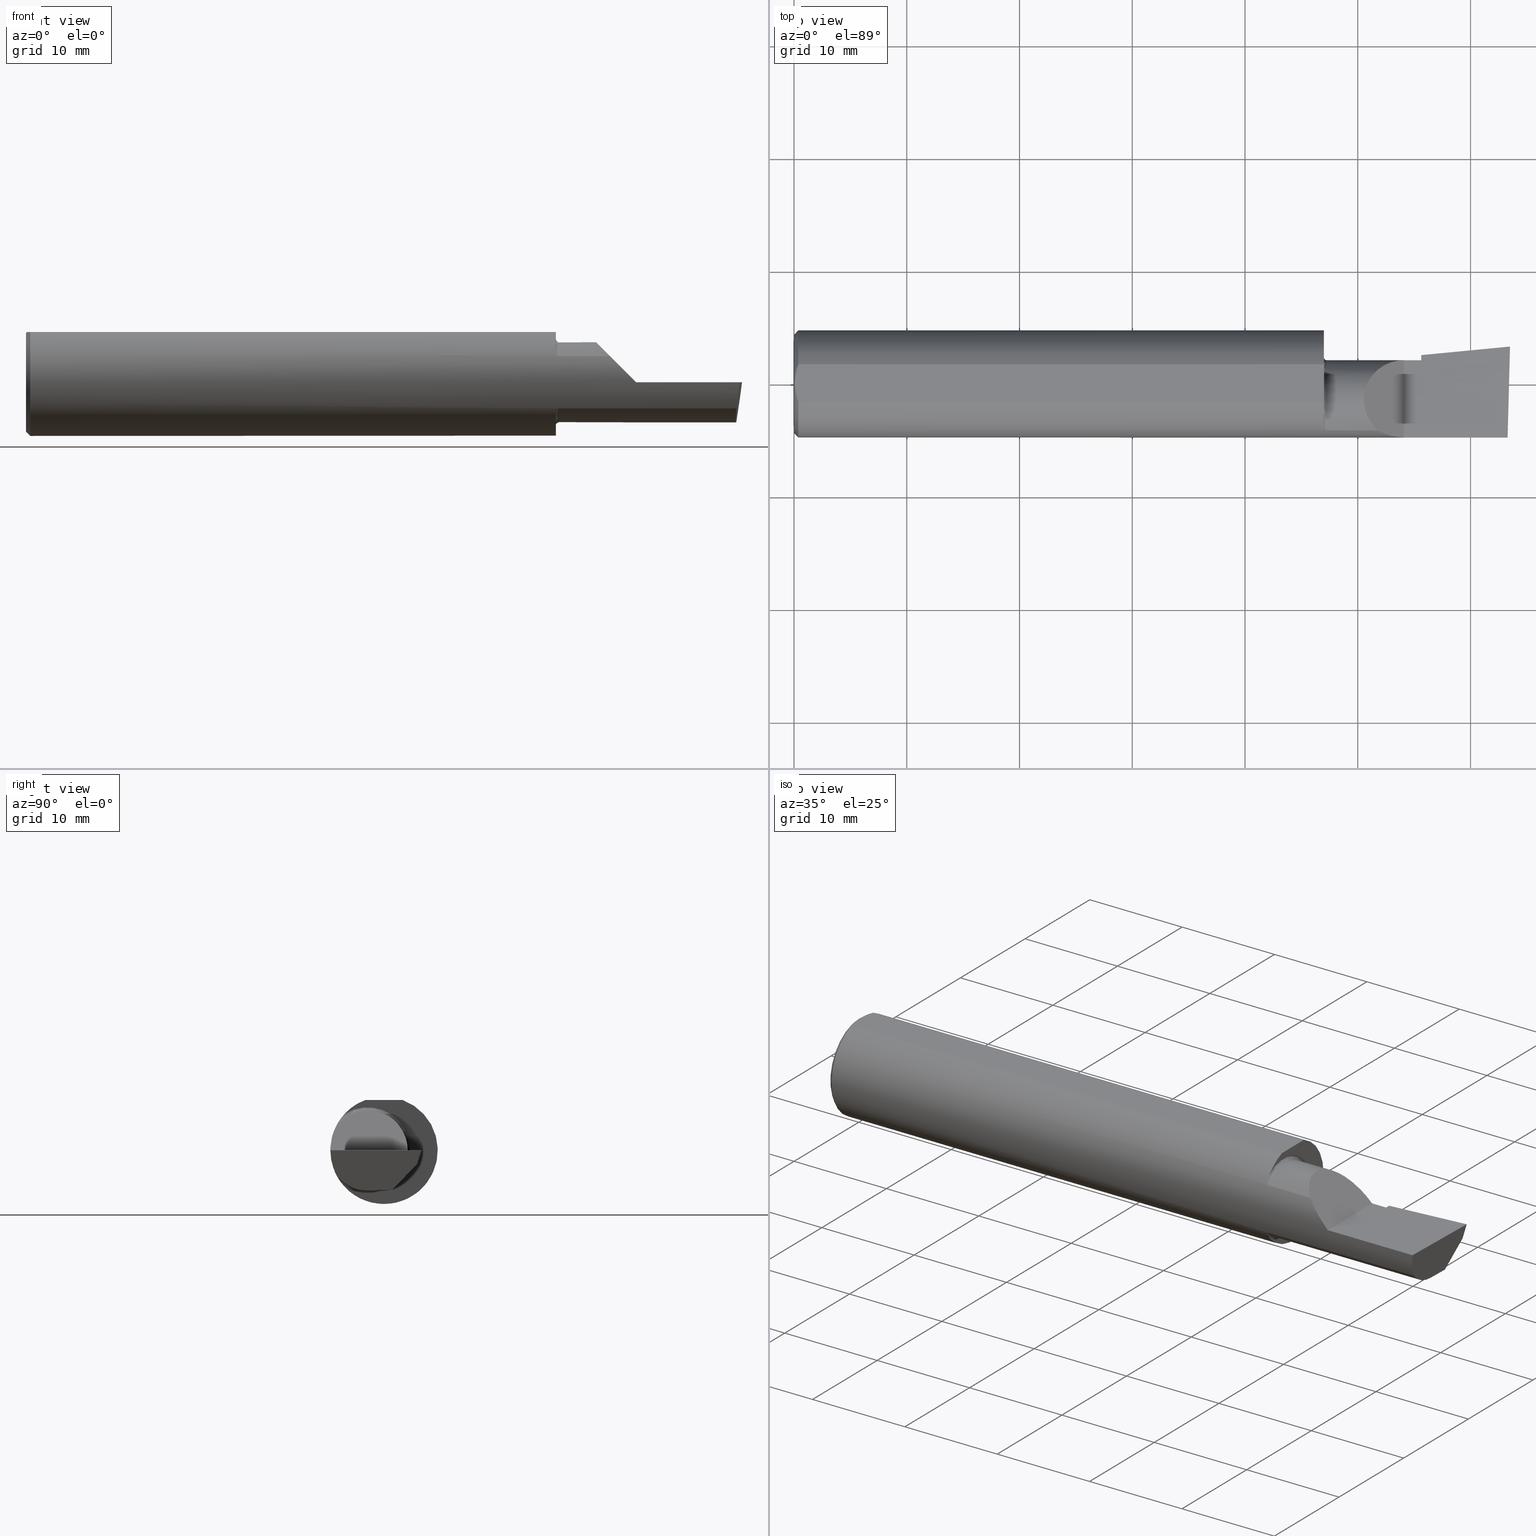
[diagram: canonical four-view strip — front | top / right | iso, engineering-drawing reading convention]
A machine part, canonical four-view strip (front | top / right | iso — engineering-drawing reading convention). The complete STEP part file that produces these views, byte-faithful:
ISO-10303-21;
HEADER;
FILE_DESCRIPTION (( 'STEP AP203' ),
    '1' );
FILE_NAME ('217510-B320600.STEP',
    '2024-04-26T19:30:04',
    ( '' ),
    ( '' ),
    'SwSTEP 2.0',
    'SolidWorks 2022',
    '' );
FILE_SCHEMA (( 'CONFIG_CONTROL_DESIGN' ));
ENDSEC;

DATA;
#1 = CARTESIAN_POINT ( 'NONE',  ( 2.189999999999999947, -0.05739999999999999963, 0.000000000000000000 ) ) ;
#2 = PLANE ( 'NONE',  #108 ) ;
#3 = AXIS2_PLACEMENT_3D ( 'NONE', #416, #96, #233 ) ;
#4 = LOCAL_TIME ( 12, 30, 4.000000000000000000, #10 ) ;
#5 = DIRECTION ( 'NONE',  ( 0.000000000000000000, -1.438723400918613551E-16, -1.000000000000000000 ) ) ;
#6 = SHAPE_DEFINITION_REPRESENTATION ( #294, #413 ) ;
#7 = DIRECTION ( 'NONE',  ( 0.9953961983671787417, 0.09584575252022456415, -1.028972571603813720E-16 ) ) ;
#8 = PRODUCT_DEFINITION ( 'UNKNOWN', '', #546, #553 ) ;
#9 = CARTESIAN_POINT ( 'NONE',  ( 2.481080296960508580, -0.1635956445993030084, -0.09130436773856176469 ) ) ;
#10 = COORDINATED_UNIVERSAL_TIME_OFFSET ( 8, 0, .BEHIND. ) ;
#11 = DIRECTION ( 'NONE',  ( 0.000000000000000000, 1.000000000000000000, 0.000000000000000000 ) ) ;
#12 = DIRECTION ( 'NONE',  ( -0.9953961983671800740, -0.09584575252021031166, 0.000000000000000000 ) ) ;
#13 = AXIS2_PLACEMENT_3D ( 'NONE', #112, #201, #404 ) ;
#14 = CARTESIAN_POINT ( 'NONE',  ( 2.475850273311264615, -0.1244607267090816621, -0.1422282308645907711 ) ) ;
#15 = DIRECTION ( 'NONE',  ( 1.000000000000000000, 6.829619984160658046E-18, 0.000000000000000000 ) ) ;
#16 = EDGE_LOOP ( 'NONE', ( #275, #225 ) ) ;
#17 = CARTESIAN_POINT ( 'NONE',  ( -9.564882787816664242E-19, 0.08264999999999998737, 3.267291166268304703E-16 ) ) ;
#18 = ADVANCED_FACE ( 'NONE', ( #517 ), #90, .T. ) ;
#19 = VERTEX_POINT ( 'NONE', #520 ) ;
#20 = CARTESIAN_POINT ( 'NONE',  ( 2.189999999999999947, -0.05739999999999999963, -0.1400500000000000633 ) ) ;
#21 = CARTESIAN_POINT ( 'NONE',  ( 1.858200855161538323, -0.1632467142437135921, -0.09192985110639206869 ) ) ;
#22 = AXIS2_PLACEMENT_3D ( 'NONE', #375, #146, #198 ) ;
#23 = LOCAL_TIME ( 12, 30, 4.000000000000000000, #533 ) ;
#24 = ORIENTED_EDGE ( 'NONE', *, *, #471, .T. ) ;
#25 = COORDINATED_UNIVERSAL_TIME_OFFSET ( 8, 0, .BEHIND. ) ;
#26 = CARTESIAN_POINT ( 'NONE',  ( 2.511419111345317923, 0.1163922996227946260, -0.04999999999999999584 ) ) ;
#27 =( BOUNDED_CURVE ( )  B_SPLINE_CURVE ( 3, ( #134, #40, #514, #180 ),
 .UNSPECIFIED., .F., .F. ) 
 B_SPLINE_CURVE_WITH_KNOTS ( ( 4, 4 ),
 ( 0.8516985021657650368, 1.360746882515200484 ),
 .UNSPECIFIED. ) 
 CURVE ( )  GEOMETRIC_REPRESENTATION_ITEM ( )  RATIONAL_B_SPLINE_CURVE ( ( 1.000000000000000000, 0.9785221379938656705, 0.9785221379938656705, 1.000000000000000000 ) ) 
 REPRESENTATION_ITEM ( '' )  );
#28 = VERTEX_POINT ( 'NONE', #94 ) ;
#29 = COORDINATED_UNIVERSAL_TIME_OFFSET ( 8, 0, .BEHIND. ) ;
#30 = LINE ( 'NONE', #276, #71 ) ;
#31 = ORIENTED_EDGE ( 'NONE', *, *, #509, .F. ) ;
#32 = CALENDAR_DATE ( 2024, 26, 4 ) ;
#33 = DIRECTION ( 'NONE',  ( 1.000000000000000000, 6.829619984160658046E-18, 0.000000000000000000 ) ) ;
#34 = B_SPLINE_CURVE_WITH_KNOTS ( 'NONE', 3,
 ( #408, #116, #21, #260, #257, #458, #601, #250, #405, #550, #597, #70 ),
 .UNSPECIFIED., .F., .F.,
 ( 4, 2, 2, 2, 2, 4 ),
 ( 1.968964099585697359E-07, 7.414172666648550939E-05, 0.0001480865569230124454, 0.0002959762174360593785, 0.0005917555384621507510, 0.001183314180514336966 ),
 .UNSPECIFIED. ) ;
#35 = ADVANCED_FACE ( 'NONE', ( #432 ), #291, .F. ) ;
#36 = AXIS2_PLACEMENT_3D ( 'NONE', #248, #152, #106 ) ;
#37 = ORIENTED_EDGE ( 'NONE', *, *, #373, .T. ) ;
#38 = AXIS2_PLACEMENT_3D ( 'NONE', #57, #153, #299 ) ;
#39 = CARTESIAN_POINT ( 'NONE',  ( 0.01499999999999997863, -0.06597272163553657975, 0.1753499999999999781 ) ) ;
#40 = CARTESIAN_POINT ( 'NONE',  ( 2.484117089522337452, -0.1792580844883771007, -0.06324101202936138755 ) ) ;
#41 = CARTESIAN_POINT ( 'NONE',  ( 2.189999999999999947, 0.1008003950587628567, 0.000000000000000000 ) ) ;
#42 = LENGTH_MEASURE_WITH_UNIT ( LENGTH_MEASURE( 0.02539999999999999897 ), #314 );
#43 = DIRECTION ( 'NONE',  ( 1.000000000000000000, 6.829619984160658046E-18, 0.000000000000000000 ) ) ;
#44 = EDGE_LOOP ( 'NONE', ( #262, #591 ) ) ;
#45 = EDGE_CURVE ( 'NONE', #570, #214, #340, .T. ) ;
#46 = ADVANCED_FACE ( 'NONE', ( #389 ), #114, .F. ) ;
#47 = LINE ( 'NONE', #473, #535 ) ;
#48 = VERTEX_POINT ( 'NONE', #481 ) ;
#49 = VECTOR ( 'NONE', #529, 39.37007874015748143 ) ;
#50 =( GEOMETRIC_REPRESENTATION_CONTEXT ( 3 ) GLOBAL_UNCERTAINTY_ASSIGNED_CONTEXT ( ( #615 ) ) GLOBAL_UNIT_ASSIGNED_CONTEXT ( ( #422, #317, #227 ) ) REPRESENTATION_CONTEXT ( 'NONE', 'WORKASPACE' ) );
#51 = DIRECTION ( 'NONE',  ( 0.000000000000000000, -1.000000000000000000, 0.000000000000000000 ) ) ;
#52 = VERTEX_POINT ( 'NONE', #54 ) ;
#53 = CARTESIAN_POINT ( 'NONE',  ( 2.189999999999999947, -0.05739999999999999963, -0.1400500000000000633 ) ) ;
#54 = CARTESIAN_POINT ( 'NONE',  ( 2.189999999999999947, 0.08265000000000004288, 3.267291166268305196E-16 ) ) ;
#55 = APPROVAL_DATE_TIME ( #434, #380 ) ;
#56 = CC_DESIGN_PERSON_AND_ORGANIZATION_ASSIGNMENT ( #223, #607, ( #546 ) ) ;
#57 = CARTESIAN_POINT ( 'NONE',  ( 1.860000000000000098, -0.05739999999999999963, 0.000000000000000000 ) ) ;
#58 = EDGE_CURVE ( 'NONE', #52, #557, #383, .T. ) ;
#59 = SECURITY_CLASSIFICATION_LEVEL ( 'unclassified' ) ;
#60 = AXIS2_PLACEMENT_3D ( 'NONE', #218, #173, #538 ) ;
#61 = DIRECTION ( 'NONE',  ( -1.000000000000000000, -6.829619984160658046E-18, -0.000000000000000000 ) ) ;
#62 = AXIS2_PLACEMENT_3D ( 'NONE', #137, #43, #328 ) ;
#63 = VERTEX_POINT ( 'NONE', #578 ) ;
#64 = CARTESIAN_POINT ( 'NONE',  ( 1.860000000000000098, -0.05740000000000000657, 0.000000000000000000 ) ) ;
#65 = DIRECTION ( 'NONE',  ( 1.000000000000000000, 0.000000000000000000, 0.000000000000000000 ) ) ;
#66 = EDGE_CURVE ( 'NONE', #476, #63, #503, .T. ) ;
#67 = DIRECTION ( 'NONE',  ( 6.829619984160658816E-18, -1.000000000000000000, 0.000000000000000000 ) ) ;
#68 = CARTESIAN_POINT ( 'NONE',  ( 0.000000000000000000, 0.06597272163553663527, 0.1753499999999999781 ) ) ;
#69 = FACE_OUTER_BOUND ( 'NONE', #235, .T. ) ;
#70 = CARTESIAN_POINT ( 'NONE',  ( 1.850000000000000311, -0.1383256097560975062, -0.1263568288047932087 ) ) ;
#71 = VECTOR ( 'NONE', #360, 39.37007874015748854 ) ;
#72 = EDGE_LOOP ( 'NONE', ( #428, #358, #117, #368, #491 ) ) ;
#73 = CARTESIAN_POINT ( 'NONE',  ( 0.01499999999999999424, 0.000000000000000000, -0.1873499999999999888 ) ) ;
#74 = DIRECTION ( 'NONE',  ( 4.755568962650852797E-18, -0.6963153109074924352, -0.7177360153954948085 ) ) ;
#75 = EDGE_CURVE ( 'NONE', #79, #594, #202, .T. ) ;
#76 = ORIENTED_EDGE ( 'NONE', *, *, #150, .T. ) ;
#77 = DIRECTION ( 'NONE',  ( 1.000000000000000000, 6.829619984160658046E-18, 0.000000000000000000 ) ) ;
#78 = CARTESIAN_POINT ( 'NONE',  ( 1.975085956200449022, 0.08265000000000000124, 0.1549140437995494002 ) ) ;
#79 = VERTEX_POINT ( 'NONE', #500 ) ;
#80 = AXIS2_PLACEMENT_3D ( 'NONE', #140, #371, #144 ) ;
#81 = VERTEX_POINT ( 'NONE', #167 ) ;
#82 = CARTESIAN_POINT ( 'NONE',  ( 0.004093196532652216939, -0.02240707710020816909, 0.1753499999999999504 ) ) ;
#83 = CARTESIAN_POINT ( 'NONE',  ( 0.008244775919947424855, 0.04453482769755855164, 0.1753499999999999504 ) ) ;
#84 = ORIENTED_EDGE ( 'NONE', *, *, #254, .F. ) ;
#85 = ADVANCED_FACE ( 'NONE', ( #453 ), #325, .T. ) ;
#86 = LINE ( 'NONE', #231, #101 ) ;
#87 = EDGE_LOOP ( 'NONE', ( #515, #507, #474, #472 ) ) ;
#88 = CARTESIAN_POINT ( 'NONE',  ( 1.850000000000000311, -0.06597272163553659363, 0.1753499999999999781 ) ) ;
#89 = AXIS2_PLACEMENT_3D ( 'NONE', #41, #229, #370 ) ;
#90 = PLANE ( 'NONE',  #89 ) ;
#91 = VECTOR ( 'NONE', #247, 39.37007874015748143 ) ;
#92 = CC_DESIGN_APPROVAL ( #380, ( #417 ) ) ;
#93 = CARTESIAN_POINT ( 'NONE',  ( 0.004115035183746292881, 0.02255629470626744487, 0.1753499999999999781 ) ) ;
#94 = CARTESIAN_POINT ( 'NONE',  ( 0.000000000000000000, 0.000000000000000000, -0.1723499999999996424 ) ) ;
#95 = EDGE_CURVE ( 'NONE', #135, #305, #34, .T. ) ;
#96 = DIRECTION ( 'NONE',  ( -1.000000000000000000, -0.000000000000000000, -0.000000000000000000 ) ) ;
#97 = ORIENTED_EDGE ( 'NONE', *, *, #448, .T. ) ;
#98 = DIRECTION ( 'NONE',  ( 0.1240019227988267692, 0.3022330132596590113, 0.9451342385281470415 ) ) ;
#99 = CC_DESIGN_PERSON_AND_ORGANIZATION_ASSIGNMENT ( #407, #612, ( #8 ) ) ;
#100 = ORIENTED_EDGE ( 'NONE', *, *, #150, .F. ) ;
#101 = VECTOR ( 'NONE', #423, 39.37007874015748143 ) ;
#102 = CARTESIAN_POINT ( 'NONE',  ( 0.000000000000000000, 0.000000000000000000, 0.000000000000000000 ) ) ;
#103 = DATE_AND_TIME ( #528, #267 ) ;
#104 = CYLINDRICAL_SURFACE ( 'NONE', #606, 0.1400500000000000078 ) ;
#105 = LINE ( 'NONE', #579, #296 ) ;
#106 = DIRECTION ( 'NONE',  ( 6.829619984160658046E-18, -1.000000000000000000, 0.000000000000000000 ) ) ;
#107 = ORIENTED_EDGE ( 'NONE', *, *, #532, .T. ) ;
#108 = AXIS2_PLACEMENT_3D ( 'NONE', #435, #574, #332 ) ;
#109 = LINE ( 'NONE', #531, #243 ) ;
#110 = EDGE_CURVE ( 'NONE', #406, #81, #346, .T. ) ;
#111 = ORIENTED_EDGE ( 'NONE', *, *, #45, .F. ) ;
#112 = CARTESIAN_POINT ( 'NONE',  ( 2.511419111345317923, 0.1163922996227946260, -0.04999999999999999584 ) ) ;
#113 = CARTESIAN_POINT ( 'NONE',  ( 1.860000000000000098, -0.1635956445993029251, -0.09130436773856194510 ) ) ;
#114 = PLANE ( 'NONE',  #36 ) ;
#115 = DIRECTION ( 'NONE',  ( 1.000000000000000000, 6.829619984160658046E-18, 0.000000000000000000 ) ) ;
#116 = CARTESIAN_POINT ( 'NONE',  ( 1.859014641741961738, -0.1635956445993029529, -0.09130436773856194510 ) ) ;
#117 = ORIENTED_EDGE ( 'NONE', *, *, #387, .T. ) ;
#118 = CARTESIAN_POINT ( 'NONE',  ( 2.189999999999999947, 0.06670933817657886955, -0.06931012851386068874 ) ) ;
#119 = AXIS2_PLACEMENT_3D ( 'NONE', #1, #443, #195 ) ;
#120 = CARTESIAN_POINT ( 'NONE',  ( 2.189999999999999947, 0.06670933817657886955, -0.06931012851386068874 ) ) ;
#121 = VECTOR ( 'NONE', #571, 39.37007874015748143 ) ;
#122 = ORIENTED_EDGE ( 'NONE', *, *, #573, .T. ) ;
#123 = CARTESIAN_POINT ( 'NONE',  ( 1.853030094855348642, -0.1569359418858942423, 0.1023945457153807304 ) ) ;
#124 = ORIENTED_EDGE ( 'NONE', *, *, #461, .T. ) ;
#125 = LINE ( 'NONE', #162, #288 ) ;
#126 = ORIENTED_EDGE ( 'NONE', *, *, #552, .T. ) ;
#127 = APPROVAL_DATE_TIME ( #172, #282 ) ;
#128 = DIRECTION ( 'NONE',  ( -1.000000000000000000, -0.000000000000000000, -0.000000000000000000 ) ) ;
#129 = VECTOR ( 'NONE', #270, 39.37007874015748143 ) ;
#130 = EDGE_CURVE ( 'NONE', #239, #599, #304, .T. ) ;
#131 = EDGE_LOOP ( 'NONE', ( #280, #185, #465, #522 ) ) ;
#132 = EDGE_CURVE ( 'NONE', #570, #498, #478, .T. ) ;
#133 = CARTESIAN_POINT ( 'NONE',  ( 0.008227791779583789808, -0.04447712204611815878, 0.1753499999999999781 ) ) ;
#134 = CARTESIAN_POINT ( 'NONE',  ( 2.481080296960508580, -0.1635956445993030084, -0.09130436773856176469 ) ) ;
#135 = VERTEX_POINT ( 'NONE', #113 ) ;
#136 = APPLICATION_PROTOCOL_DEFINITION ( 'international standard', 'config_control_design', 1994, #323 ) ;
#137 = CARTESIAN_POINT ( 'NONE',  ( 1.850000000000000311, 0.09264999999999999625, 0.000000000000000000 ) ) ;
#138 = ORIENTED_EDGE ( 'NONE', *, *, #263, .T. ) ;
#139 = CARTESIAN_POINT ( 'NONE',  ( 0.003000000000000218638, 2.334609556160449697E-17, 0.1753499999999999781 ) ) ;
#140 = CARTESIAN_POINT ( 'NONE',  ( 2.500000000000000000, -0.05739999999999999963, -0.1400500000000000633 ) ) ;
#141 = AXIS2_PLACEMENT_3D ( 'NONE', #355, #266, #206 ) ;
#142 = EDGE_LOOP ( 'NONE', ( #361, #377, #268, #618, #164, #210 ) ) ;
#143 = ORGANIZATION ( 'UNSPECIFIED', 'UNSPECIFIED', '' ) ;
#144 = DIRECTION ( 'NONE',  ( 0.000000000000000000, -1.000000000000000000, -8.537024980200821325E-17 ) ) ;
#145 = EDGE_LOOP ( 'NONE', ( #219, #418, #560, #242, #412, #485 ) ) ;
#146 = DIRECTION ( 'NONE',  ( -1.000000000000000000, -6.829619984160658046E-18, 0.000000000000000000 ) ) ;
#147 = ORIENTED_EDGE ( 'NONE', *, *, #461, .F. ) ;
#148 = DIRECTION ( 'NONE',  ( 0.000000000000000000, -1.000000000000000000, 0.000000000000000000 ) ) ;
#149 = CIRCLE ( 'NONE', #436, 0.1723499999999996424 ) ;
#150 = EDGE_CURVE ( 'NONE', #512, #599, #187, .T. ) ;
#151 = CARTESIAN_POINT ( 'NONE',  ( 2.189999999999999947, 0.09745742888373046253, -0.01088401009027229610 ) ) ;
#152 = DIRECTION ( 'NONE',  ( -1.000000000000000000, -6.829619984160658046E-18, 0.000000000000000000 ) ) ;
#153 = DIRECTION ( 'NONE',  ( -1.000000000000000000, -6.829619984160658046E-18, -0.000000000000000000 ) ) ;
#154 = CARTESIAN_POINT ( 'NONE',  ( 2.493439983562941720, 0.1146611065212079089, -0.04999999999999999584 ) ) ;
#155 = EDGE_CURVE ( 'NONE', #512, #557, #583, .T. ) ;
#156 = EDGE_CURVE ( 'NONE', #512, #524, #349, .T. ) ;
#157 = VECTOR ( 'NONE', #7, 39.37007874015748143 ) ;
#158 = CARTESIAN_POINT ( 'NONE',  ( 1.859029114488072842, -0.1635956446012896415, 0.09130436773500356928 ) ) ;
#159 = PLANE ( 'NONE',  #13 ) ;
#160 = DIRECTION ( 'NONE',  ( -1.000000000000000000, -6.829619984160658046E-18, -0.000000000000000000 ) ) ;
#161 =( BOUNDED_CURVE ( )  B_SPLINE_CURVE ( 3, ( #345, #595, #542, #264 ),
 .UNSPECIFIED., .F., .F. ) 
 B_SPLINE_CURVE_WITH_KNOTS ( ( 4, 4 ),
 ( 5.632580117768155148, 6.493234751459282528 ),
 .UNSPECIFIED. ) 
 CURVE ( )  GEOMETRIC_REPRESENTATION_ITEM ( )  RATIONAL_B_SPLINE_CURVE ( ( 1.000000000000000000, 0.9392195014330944058, 0.9392195014330944058, 1.000000000000000000 ) ) 
 REPRESENTATION_ITEM ( '' )  );
#162 = CARTESIAN_POINT ( 'NONE',  ( 2.024999999999999911, -0.1635956445993030084, -0.09130436773856176469 ) ) ;
#163 = CARTESIAN_POINT ( 'NONE',  ( 2.500000000000000000, -0.05739999999999999963, -0.1400500000000000633 ) ) ;
#164 = ORIENTED_EDGE ( 'NONE', *, *, #552, .F. ) ;
#165 = DIRECTION ( 'NONE',  ( -0.9922060308645608284, 0.02598182930461468559, 0.1218693434050591162 ) ) ;
#166 = ADVANCED_FACE ( 'NONE', ( #281 ), #363, .F. ) ;
#167 = CARTESIAN_POINT ( 'NONE',  ( 2.189999999999999947, 0.08544315931885974880, -0.04999999999999999584 ) ) ;
#168 = CONICAL_SURFACE ( 'NONE', #619, 0.1873499999999999888, 0.7853981633974602694 ) ;
#169 = ORIENTED_EDGE ( 'NONE', *, *, #344, .F. ) ;
#170 = FACE_OUTER_BOUND ( 'NONE', #145, .T. ) ;
#171 = ORIENTED_EDGE ( 'NONE', *, *, #525, .F. ) ;
#172 = DATE_AND_TIME ( #32, #568 ) ;
#173 = DIRECTION ( 'NONE',  ( -1.000000000000000000, -0.000000000000000000, -0.000000000000000000 ) ) ;
#174 = ORIENTED_EDGE ( 'NONE', *, *, #433, .T. ) ;
#175 = CARTESIAN_POINT ( 'NONE',  ( 0.000000000000000000, 0.000000000000000000, 0.000000000000000000 ) ) ;
#176 = DIRECTION ( 'NONE',  ( 0.000000000000000000, 0.000000000000000000, -1.000000000000000000 ) ) ;
#177 = CIRCLE ( 'NONE', #469, 0.1723499999999996424 ) ;
#178 = VERTEX_POINT ( 'NONE', #88 ) ;
#179 = PERSON_AND_ORGANIZATION ( #382, #143 ) ;
#180 = CARTESIAN_POINT ( 'NONE',  ( 2.491672876940991710, -0.1873499999999999888, 6.915950918908297591E-17 ) ) ;
#181 = ORIENTED_EDGE ( 'NONE', *, *, #209, .F. ) ;
#182 = EDGE_CURVE ( 'NONE', #178, #283, #47, .T. ) ;
#183 = PERSON_AND_ORGANIZATION_ROLE ( 'design_owner' ) ;
#184 = CARTESIAN_POINT ( 'NONE',  ( 0.01499999999999999424, 0.000000000000000000, 0.000000000000000000 ) ) ;
#185 = ORIENTED_EDGE ( 'NONE', *, *, #441, .T. ) ;
#186 = CARTESIAN_POINT ( 'NONE',  ( 3.377502344341257155E-32, -0.1873499999999999610, 3.267291166268304703E-16 ) ) ;
#187 = CIRCLE ( 'NONE', #577, 0.1400500000000000356 ) ;
#188 = ORIENTED_EDGE ( 'NONE', *, *, #66, .F. ) ;
#189 = CARTESIAN_POINT ( 'NONE',  ( 0.5470260790800310913, -0.05740000000000000657, 2.701812985571357332E-16 ) ) ;
#190 = ORIENTED_EDGE ( 'NONE', *, *, #45, .T. ) ;
#191 = LINE ( 'NONE', #576, #49 ) ;
#192 = EDGE_CURVE ( 'NONE', #498, #283, #487, .T. ) ;
#193 = APPROVAL_ROLE ( '' ) ;
#194 = LINE ( 'NONE', #189, #157 ) ;
#195 = DIRECTION ( 'NONE',  ( 0.000000000000000000, -1.000000000000000000, 0.000000000000000000 ) ) ;
#196 = CLOSED_SHELL ( 'NONE', ( #303, #421, #18, #166, #261, #35, #551, #610, #331, #85, #329, #217, #490, #462, #588, #46, #543 ) ) ;
#197 = CIRCLE ( 'NONE', #394, 0.1873499999999999888 ) ;
#198 = DIRECTION ( 'NONE',  ( 6.829619984160658046E-18, -1.000000000000000000, 0.000000000000000000 ) ) ;
#199 = FACE_OUTER_BOUND ( 'NONE', #44, .T. ) ;
#200 = DIRECTION ( 'NONE',  ( 0.000000000000000000, 1.000000000000000000, -1.438723400918613551E-16 ) ) ;
#201 = DIRECTION ( 'NONE',  ( -0.06894566448119621160, 0.7160281025913034503, -0.6946583704589934793 ) ) ;
#202 = LINE ( 'NONE', #212, #265 ) ;
#203 = APPROVAL ( #230, 'UNSPECIFIED' ) ;
#204 = VECTOR ( 'NONE', #244, 39.37007874015748143 ) ;
#205 = PLANE ( 'NONE',  #544 ) ;
#206 = DIRECTION ( 'NONE',  ( 0.000000000000000000, 0.000000000000000000, -1.000000000000000000 ) ) ;
#207 = DIRECTION ( 'NONE',  ( -1.000000000000000000, -0.000000000000000000, -0.000000000000000000 ) ) ;
#208 = DIRECTION ( 'NONE',  ( -1.000000000000000000, 5.691349986800549142E-18, -0.000000000000000000 ) ) ;
#209 = EDGE_CURVE ( 'NONE', #438, #570, #464, .T. ) ;
#210 = ORIENTED_EDGE ( 'NONE', *, *, #110, .F. ) ;
#211 = CARTESIAN_POINT ( 'NONE',  ( 1.850000000000000311, 0.000000000000000000, 0.000000000000000000 ) ) ;
#212 = CARTESIAN_POINT ( 'NONE',  ( 2.490039159128059953, -0.2497391662021650194, 6.932588350567417155E-17 ) ) ;
#213 = B_SPLINE_CURVE_WITH_KNOTS ( 'NONE', 3,
 ( #39, #359, #133, #82, #319, #139 ),
 .UNSPECIFIED., .F., .F.,
 ( 4, 2, 4 ),
 ( 0.001779942938356815062, 0.002629978419973711019, 0.003480013901590607410 ),
 .UNSPECIFIED. ) ;
#214 = VERTEX_POINT ( 'NONE', #273 ) ;
#215 = PLANE ( 'NONE',  #352 ) ;
#216 = ORIENTED_EDGE ( 'NONE', *, *, #95, .F. ) ;
#217 = ADVANCED_FACE ( 'NONE', ( #467 ), #475, .T. ) ;
#218 = CARTESIAN_POINT ( 'NONE',  ( 0.01499999999999999424, 0.000000000000000000, 0.000000000000000000 ) ) ;
#219 = ORIENTED_EDGE ( 'NONE', *, *, #286, .F. ) ;
#220 = DIRECTION ( 'NONE',  ( -0.7071067811865439090, 0.000000000000000000, -0.7071067811865512365 ) ) ;
#221 = CARTESIAN_POINT ( 'NONE',  ( 2.129999999999999893, -0.1873499999999999888, 1.065442715258197396E-16 ) ) ;
#222 = EDGE_LOOP ( 'NONE', ( #309, #401, #451, #622, #311, #31, #171, #424, #289, #554, #190, #84, #216 ) ) ;
#223 = PERSON_AND_ORGANIZATION ( #382, #143 ) ;
#224 = CYLINDRICAL_SURFACE ( 'NONE', #3, 0.1873499999999999888 ) ;
#225 = ORIENTED_EDGE ( 'NONE', *, *, #343, .T. ) ;
#226 = CC_DESIGN_DATE_AND_TIME_ASSIGNMENT ( #580, #587, ( #417 ) ) ;
#227 =( NAMED_UNIT ( * ) SI_UNIT ( $, .STERADIAN. ) SOLID_ANGLE_UNIT ( ) );
#228 = CARTESIAN_POINT ( 'NONE',  ( 2.477873865042410806, -0.05739999999999999963, -0.1400500000000000633 ) ) ;
#229 = DIRECTION ( 'NONE',  ( -1.000000000000000000, -6.829619984160658046E-18, 0.000000000000000000 ) ) ;
#230 = APPROVAL_STATUS ( 'not_yet_approved' ) ;
#231 = CARTESIAN_POINT ( 'NONE',  ( 1.850000000000000311, 0.2373500000000000332, 0.1753499999999999504 ) ) ;
#232 = ORIENTED_EDGE ( 'NONE', *, *, #238, .F. ) ;
#233 = DIRECTION ( 'NONE',  ( 0.000000000000000000, 0.000000000000000000, 1.000000000000000000 ) ) ;
#234 = AXIS2_PLACEMENT_3D ( 'NONE', #381, #534, #51 ) ;
#235 = EDGE_LOOP ( 'NONE', ( #356, #545, #97, #174, #333, #459 ) ) ;
#236 = EDGE_CURVE ( 'NONE', #602, #79, #27, .T. ) ;
#237 = CARTESIAN_POINT ( 'NONE',  ( 2.477889026591898247, -0.05682100378451882677, -0.1400500000000000633 ) ) ;
#238 = EDGE_CURVE ( 'NONE', #214, #178, #86, .T. ) ;
#239 = VERTEX_POINT ( 'NONE', #228 ) ;
#240 = DIRECTION ( 'NONE',  ( 0.000000000000000000, 0.000000000000000000, 1.000000000000000000 ) ) ;
#241 = CARTESIAN_POINT ( 'NONE',  ( 0.000000000000000000, 2.202527268266512578E-17, 0.1723499999999996424 ) ) ;
#242 = ORIENTED_EDGE ( 'NONE', *, *, #263, .F. ) ;
#243 = VECTOR ( 'NONE', #623, 39.37007874015748143 ) ;
#244 = DIRECTION ( 'NONE',  ( -0.02617694830779365364, -0.9996573249755593693, -8.535148296544462419E-17 ) ) ;
#245 = APPROVAL_STATUS ( 'not_yet_approved' ) ;
#246 = ORIENTED_EDGE ( 'NONE', *, *, #156, .T. ) ;
#247 = DIRECTION ( 'NONE',  ( 0.000000000000000000, 1.000000000000000000, 8.537024980200821325E-17 ) ) ;
#248 = CARTESIAN_POINT ( 'NONE',  ( 2.189999999999999947, 0.1008003950587628567, 0.000000000000000000 ) ) ;
#249 = CARTESIAN_POINT ( 'NONE',  ( 1.850530357231195522, -0.1482623167742068426, 0.1147852156680473495 ) ) ;
#250 = CARTESIAN_POINT ( 'NONE',  ( 1.853013987655237171, -0.1568958379530026870, -0.1024560150687156973 ) ) ;
#251 = DIMENSIONAL_EXPONENTS ( 1.000000000000000000, 0.000000000000000000, 0.000000000000000000, 0.000000000000000000, 0.000000000000000000, 0.000000000000000000, 0.000000000000000000 ) ;
#252 = LINE ( 'NONE', #256, #456 ) ;
#253 = CARTESIAN_POINT ( 'NONE',  ( 2.129999999999999893, 0.08264999999999990410, 1.065442715258197396E-16 ) ) ;
#254 = EDGE_CURVE ( 'NONE', #305, #214, #307, .T. ) ;
#255 = ORIENTED_EDGE ( 'NONE', *, *, #110, .T. ) ;
#256 = CARTESIAN_POINT ( 'NONE',  ( 2.024999999999999911, -0.1635956445993030084, 0.09130436773856176469 ) ) ;
#257 = CARTESIAN_POINT ( 'NONE',  ( 1.856503643436637763, -0.1620795007490428707, -0.09397341491037329575 ) ) ;
#258 = VERTEX_POINT ( 'NONE', #221 ) ;
#259 = CARTESIAN_POINT ( 'NONE',  ( 2.189999999999999947, 0.06026672169836850418, -0.07595093880103591377 ) ) ;
#260 = CARTESIAN_POINT ( 'NONE',  ( 1.856977885846546661, -0.1625039841807085217, -0.09323648621225567867 ) ) ;
#261 = ADVANCED_FACE ( 'NONE', ( #425 ), #224, .T. ) ;
#262 = ORIENTED_EDGE ( 'NONE', *, *, #561, .T. ) ;
#263 = EDGE_CURVE ( 'NONE', #52, #19, #411, .T. ) ;
#264 = CARTESIAN_POINT ( 'NONE',  ( 2.477873865042410806, -0.05739999999999999963, -0.1400500000000000633 ) ) ;
#265 = VECTOR ( 'NONE', #495, 39.37007874015748854 ) ;
#266 = DIRECTION ( 'NONE',  ( 1.000000000000000000, 0.000000000000000000, 0.000000000000000000 ) ) ;
#267 = LOCAL_TIME ( 12, 30, 4.000000000000000000, #460 ) ;
#268 = ORIENTED_EDGE ( 'NONE', *, *, #156, .F. ) ;
#269 = PERSON_AND_ORGANIZATION ( #382, #143 ) ;
#270 = DIRECTION ( 'NONE',  ( -6.829619984160658816E-18, 1.000000000000000000, 7.059994452165177242E-34 ) ) ;
#271 = EDGE_LOOP ( 'NONE', ( #188, #449, #572 ) ) ;
#272 = PERSON_AND_ORGANIZATION ( #382, #143 ) ;
#273 = CARTESIAN_POINT ( 'NONE',  ( 1.850000000000000311, 0.06597272163553663527, 0.1753499999999999781 ) ) ;
#274 = CC_DESIGN_PERSON_AND_ORGANIZATION_ASSIGNMENT ( #484, #440, ( #417 ) ) ;
#275 = ORIENTED_EDGE ( 'NONE', *, *, #155, .T. ) ;
#276 = CARTESIAN_POINT ( 'NONE',  ( 2.491859106488688358, 0.02714641170210413054, -0.1400500000000000633 ) ) ;
#277 = VECTOR ( 'NONE', #208, 39.37007874015748143 ) ;
#278 = EDGE_CURVE ( 'NONE', #258, #476, #327, .T. ) ;
#279 = APPROVAL_PERSON_ORGANIZATION ( #269, #203, #193 ) ;
#280 = ORIENTED_EDGE ( 'NONE', *, *, #320, .F. ) ;
#281 = FACE_OUTER_BOUND ( 'NONE', #131, .T. ) ;
#282 = APPROVAL ( #466, 'UNSPECIFIED' ) ;
#283 = VERTEX_POINT ( 'NONE', #470 ) ;
#284 = DIRECTION ( 'NONE',  ( -1.000000000000000000, -0.000000000000000000, -0.000000000000000000 ) ) ;
#285 = ORIENTED_EDGE ( 'NONE', *, *, #596, .F. ) ;
#286 = EDGE_CURVE ( 'NONE', #79, #258, #562, .T. ) ;
#287 = FACE_OUTER_BOUND ( 'NONE', #300, .T. ) ;
#288 = VECTOR ( 'NONE', #342, 39.37007874015748143 ) ;
#289 = ORIENTED_EDGE ( 'NONE', *, *, #192, .F. ) ;
#290 = DIRECTION ( 'NONE',  ( -1.000000000000000000, -0.000000000000000000, -0.000000000000000000 ) ) ;
#291 = PLANE ( 'NONE',  #306 ) ;
#292 = CALENDAR_DATE ( 2024, 26, 4 ) ;
#293 = DIRECTION ( 'NONE',  ( 4.755568962650852797E-18, -0.6963153109074924352, -0.7177360153954948085 ) ) ;
#294 = PRODUCT_DEFINITION_SHAPE ( 'NONE', 'NONE',  #8 ) ;
#295 = CARTESIAN_POINT ( 'NONE',  ( 2.500188977433779769, 0.1311105994646662165, 0.001440373173041280741 ) ) ;
#296 = VECTOR ( 'NONE', #483, 39.37007874015748143 ) ;
#297 = ORIENTED_EDGE ( 'NONE', *, *, #238, .T. ) ;
#298 = APPROVAL_PERSON_ORGANIZATION ( #396, #380, #530 ) ;
#299 = DIRECTION ( 'NONE',  ( 6.829619984160658046E-18, -1.000000000000000000, 0.000000000000000000 ) ) ;
#300 = EDGE_LOOP ( 'NONE', ( #138, #124, #126, #326 ) ) ;
#301 = PLANE ( 'NONE',  #362 ) ;
#302 = CARTESIAN_POINT ( 'NONE',  ( 1.850000000000000533, -0.1434410963562315344, 0.1207567927018307619 ) ) ;
#303 = ADVANCED_FACE ( 'NONE', ( #321 ), #168, .T. ) ;
#304 = LINE ( 'NONE', #163, #277 ) ;
#305 = VERTEX_POINT ( 'NONE', #463 ) ;
#306 = AXIS2_PLACEMENT_3D ( 'NONE', #437, #5, #200 ) ;
#307 = CIRCLE ( 'NONE', #446, 0.1873499999999999888 ) ;
#308 = CARTESIAN_POINT ( 'NONE',  ( 0.000000000000000000, 0.000000000000000000, 0.000000000000000000 ) ) ;
#309 = ORIENTED_EDGE ( 'NONE', *, *, #573, .F. ) ;
#310 = DIRECTION ( 'NONE',  ( -1.000000000000000000, 0.000000000000000000, 1.033731667140896077E-16 ) ) ;
#311 = ORIENTED_EDGE ( 'NONE', *, *, #501, .F. ) ;
#312 = CARTESIAN_POINT ( 'NONE',  ( 2.499999999999978684, 0.1306500000000238026, 8.386960087970729725E-14 ) ) ;
#313 = ORIENTED_EDGE ( 'NONE', *, *, #58, .T. ) ;
#314 =( LENGTH_UNIT ( ) NAMED_UNIT ( * ) SI_UNIT ( $, .METRE. ) );
#315 = VECTOR ( 'NONE', #74, 39.37007874015748854 ) ;
#316 = ORIENTED_EDGE ( 'NONE', *, *, #132, .T. ) ;
#317 =( NAMED_UNIT ( * ) PLANE_ANGLE_UNIT ( ) SI_UNIT ( $, .RADIAN. ) );
#318 = ORIENTED_EDGE ( 'NONE', *, *, #392, .T. ) ;
#319 = CARTESIAN_POINT ( 'NONE',  ( 0.003000000000000172667, -0.01126410975715121283, 0.1753500000000000059 ) ) ;
#320 = EDGE_CURVE ( 'NONE', #614, #524, #30, .T. ) ;
#321 = FACE_OUTER_BOUND ( 'NONE', #468, .T. ) ;
#322 = ORIENTED_EDGE ( 'NONE', *, *, #254, .T. ) ;
#323 = APPLICATION_CONTEXT ( 'configuration controlled 3d designs of mechanical parts and assemblies' ) ;
#324 = CARTESIAN_POINT ( 'NONE',  ( 0.003000000000000169632, 0.01127363201155560934, 0.1753499999999999781 ) ) ;
#325 = CONICAL_SURFACE ( 'NONE', #141, 0.1873499999999999888, 0.7853981633974602694 ) ;
#326 = ORIENTED_EDGE ( 'NONE', *, *, #58, .F. ) ;
#327 =( BOUNDED_CURVE ( )  B_SPLINE_CURVE ( 3, ( #367, #519, #617, #620 ),
 .UNSPECIFIED., .F., .F. ) 
 B_SPLINE_CURVE_WITH_KNOTS ( ( 4, 4 ),
 ( 4.712388980384689674, 5.221437360734125122 ),
 .UNSPECIFIED. ) 
 CURVE ( )  GEOMETRIC_REPRESENTATION_ITEM ( )  RATIONAL_B_SPLINE_CURVE ( ( 1.000000000000000000, 0.9785221379938656705, 0.9785221379938656705, 1.000000000000000000 ) ) 
 REPRESENTATION_ITEM ( '' )  );
#328 = DIRECTION ( 'NONE',  ( -6.829619984160658046E-18, 1.000000000000000000, 0.000000000000000000 ) ) ;
#329 = ADVANCED_FACE ( 'NONE', ( #556 ), #518, .F. ) ;
#330 = EDGE_LOOP ( 'NONE', ( #232, #111, #181, #548, #505 ) ) ;
#331 = ADVANCED_FACE ( 'NONE', ( #199 ), #429, .F. ) ;
#332 = DIRECTION ( 'NONE',  ( 0.000000000000000000, 0.2936076258024060692, 0.9559260233253795702 ) ) ;
#333 = ORIENTED_EDGE ( 'NONE', *, *, #75, .F. ) ;
#334 = CARTESIAN_POINT ( 'NONE',  ( 0.003000000000000218638, 2.334609556160449697E-17, 0.1753499999999999781 ) ) ;
#335 = VECTOR ( 'NONE', #77, 39.37007874015748143 ) ;
#336 = MECHANICAL_CONTEXT ( 'NONE', #376, 'mechanical' ) ;
#337 = FACE_OUTER_BOUND ( 'NONE', #455, .T. ) ;
#338 = LINE ( 'NONE', #295, #558 ) ;
#339 = DIRECTION ( 'NONE',  ( 1.000000000000000000, 0.000000000000000000, 0.000000000000000000 ) ) ;
#340 = LINE ( 'NONE', #68, #351 ) ;
#341 = VECTOR ( 'NONE', #293, 39.37007874015748854 ) ;
#342 = DIRECTION ( 'NONE',  ( -1.000000000000000000, -6.829619984160658046E-18, -0.000000000000000000 ) ) ;
#343 = EDGE_CURVE ( 'NONE', #557, #512, #486, .T. ) ;
#344 = EDGE_CURVE ( 'NONE', #420, #135, #426, .T. ) ;
#345 = CARTESIAN_POINT ( 'NONE',  ( 2.481080296960508580, -0.1635956445993030084, -0.09130436773856176469 ) ) ;
#346 = LINE ( 'NONE', #26, #567 ) ;
#347 = ORIENTED_EDGE ( 'NONE', *, *, #433, .F. ) ;
#348 = CARTESIAN_POINT ( 'NONE',  ( 1.855270962286581282, -0.1607994114084981829, 0.09615890281982662768 ) ) ;
#349 = LINE ( 'NONE', #120, #315 ) ;
#350 = VERTEX_POINT ( 'NONE', #241 ) ;
#351 = VECTOR ( 'NONE', #65, 39.37007874015748143 ) ;
#352 = AXIS2_PLACEMENT_3D ( 'NONE', #395, #586, #310 ) ;
#353 = LINE ( 'NONE', #118, #415 ) ;
#354 = EDGE_CURVE ( 'NONE', #258, #63, #191, .T. ) ;
#355 = CARTESIAN_POINT ( 'NONE',  ( 0.01499999999999999424, 0.000000000000000000, 0.000000000000000000 ) ) ;
#356 = ORIENTED_EDGE ( 'NONE', *, *, #596, .T. ) ;
#357 = CARTESIAN_POINT ( 'NONE',  ( 2.189999999999999947, -0.001919314351446948456, -0.1400500000000000911 ) ) ;
#358 = ORIENTED_EDGE ( 'NONE', *, *, #561, .F. ) ;
#359 = CARTESIAN_POINT ( 'NONE',  ( 0.01128414053810044941, -0.05542038647445821781, 0.1753499999999999781 ) ) ;
#360 = DIRECTION ( 'NONE',  ( -0.9953961983671800740, -0.09584575252021031166, -1.093478026937437817E-17 ) ) ;
#361 = ORIENTED_EDGE ( 'NONE', *, *, #448, .F. ) ;
#362 = AXIS2_PLACEMENT_3D ( 'NONE', #493, #220, #565 ) ;
#363 = PLANE ( 'NONE',  #80 ) ;
#364 = ORIENTED_EDGE ( 'NONE', *, *, #155, .F. ) ;
#365 = EDGE_CURVE ( 'NONE', #599, #524, #581, .T. ) ;
#366 = PERSON_AND_ORGANIZATION_ROLE ( 'design_supplier' ) ;
#367 = CARTESIAN_POINT ( 'NONE',  ( 2.129999999999999893, -0.1873499999999999888, 1.065442715258197396E-16 ) ) ;
#368 = ORIENTED_EDGE ( 'NONE', *, *, #192, .T. ) ;
#369 = DIRECTION ( 'NONE',  ( 0.000000000000000000, 1.000000000000000000, 0.000000000000000000 ) ) ;
#370 = DIRECTION ( 'NONE',  ( 6.829619984160658046E-18, -1.000000000000000000, 0.000000000000000000 ) ) ;
#371 = DIRECTION ( 'NONE',  ( -4.858719700838190352E-34, -8.537024980200821325E-17, 1.000000000000000000 ) ) ;
#372 = VECTOR ( 'NONE', #477, 39.37007874015748854 ) ;
#373 = EDGE_CURVE ( 'NONE', #350, #438, #109, .T. ) ;
#374 = ORIENTED_EDGE ( 'NONE', *, *, #489, .F. ) ;
#375 = CARTESIAN_POINT ( 'NONE',  ( 2.189999999999999947, 0.1008003950587628567, 0.000000000000000000 ) ) ;
#376 = APPLICATION_CONTEXT ( 'configuration controlled 3d designs of mechanical parts and assemblies' ) ;
#377 = ORIENTED_EDGE ( 'NONE', *, *, #320, .T. ) ;
#378 = LINE ( 'NONE', #442, #372 ) ;
#379 = APPROVAL_DATE_TIME ( #513, #203 ) ;
#380 = APPROVAL ( #245, 'UNSPECIFIED' ) ;
#381 = CARTESIAN_POINT ( 'NONE',  ( 1.850000000000000311, -0.05740000000000000657, 0.000000000000000000 ) ) ;
#382 = PERSON ( 'UNSPECIFIED', 'UNSPECIFIED', 'UNSPECIFIED', ('UNSPECIFIED'), ('UNSPECIFIED'), ('UNSPECIFIED') ) ;
#383 = CIRCLE ( 'NONE', #119, 0.1400500000000000356 ) ;
#384 = AXIS2_PLACEMENT_3D ( 'NONE', #64, #61, #148 ) ;
#385 = CC_DESIGN_APPROVAL ( #282, ( #546 ) ) ;
#386 = PRODUCT ( '217510-B320600', '217510-B320600', '', ( #336 ) ) ;
#387 = EDGE_CURVE ( 'NONE', #28, #498, #105, .T. ) ;
#388 = DIRECTION ( 'NONE',  ( 0.000000000000000000, 0.000000000000000000, -1.000000000000000000 ) ) ;
#389 = FACE_OUTER_BOUND ( 'NONE', #16, .T. ) ;
#390 = CARTESIAN_POINT ( 'NONE',  ( 2.189999999999999947, 0.06670933817657886955, -0.06931012851386068874 ) ) ;
#391 = DIRECTION ( 'NONE',  ( 0.1219104985251942275, 0.000000000000000000, 0.9925410975618785825 ) ) ;
#392 = EDGE_CURVE ( 'NONE', #19, #594, #194, .T. ) ;
#393 = CARTESIAN_POINT ( 'NONE',  ( 2.038695632261437130, -0.1635956445993029529, 0.09130436773856191734 ) ) ;
#394 = AXIS2_PLACEMENT_3D ( 'NONE', #211, #115, #11 ) ;
#395 = CARTESIAN_POINT ( 'NONE',  ( 2.500000000000000000, -0.2500000000000000555, 6.829619984160658046E-17 ) ) ;
#396 = PERSON_AND_ORGANIZATION ( #382, #143 ) ;
#397 = CARTESIAN_POINT ( 'NONE',  ( 1.857002686248069967, -0.1625222757049325228, 0.09320450095779621302 ) ) ;
#398 = CARTESIAN_POINT ( 'NONE',  ( 2.189999999999999947, -0.05739999999999999963, 0.000000000000000000 ) ) ;
#399 = ORIENTED_EDGE ( 'NONE', *, *, #387, .F. ) ;
#400 = CARTESIAN_POINT ( 'NONE',  ( 0.000000000000000000, -0.05740000000000001351, 0.000000000000000000 ) ) ;
#401 = ORIENTED_EDGE ( 'NONE', *, *, #236, .T. ) ;
#402 = AXIS2_PLACEMENT_3D ( 'NONE', #569, #604, #608 ) ;
#403 = VECTOR ( 'NONE', #128, 39.37007874015748143 ) ;
#404 = DIRECTION ( 'NONE',  ( 0.000000000000000000, 0.6963153109074925462, 0.7177360153954948085 ) ) ;
#405 = CARTESIAN_POINT ( 'NONE',  ( 1.852284340146846953, -0.1548226717605716285, -0.1055657780131311618 ) ) ;
#406 = VERTEX_POINT ( 'NONE', #154 ) ;
#407 = PERSON_AND_ORGANIZATION ( #382, #143 ) ;
#408 = CARTESIAN_POINT ( 'NONE',  ( 1.860000000000000098, -0.1635956445993029251, -0.09130436773856194510 ) ) ;
#409 = ORIENTED_EDGE ( 'NONE', *, *, #209, .T. ) ;
#410 = CALENDAR_DATE ( 2024, 26, 4 ) ;
#411 = LINE ( 'NONE', #511, #129 ) ;
#412 = ORIENTED_EDGE ( 'NONE', *, *, #532, .F. ) ;
#413 = ADVANCED_BREP_SHAPE_REPRESENTATION ( '217510-B320600', ( #598, #427 ), #50 ) ;
#414 = DIRECTION ( 'NONE',  ( 1.000000000000000000, 0.000000000000000000, 0.000000000000000000 ) ) ;
#415 = VECTOR ( 'NONE', #447, 39.37007874015748854 ) ;
#416 = CARTESIAN_POINT ( 'NONE',  ( 0.000000000000000000, 0.000000000000000000, 0.000000000000000000 ) ) ;
#417 = SECURITY_CLASSIFICATION ( '', '', #59 ) ;
#418 = ORIENTED_EDGE ( 'NONE', *, *, #75, .T. ) ;
#419 = CARTESIAN_POINT ( 'NONE',  ( 0.01125230581755086272, 0.05532998191409922023, 0.1753500000000000059 ) ) ;
#420 = VERTEX_POINT ( 'NONE', #624 ) ;
#421 = ADVANCED_FACE ( 'NONE', ( #287 ), #492, .T. ) ;
#422 =( CONVERSION_BASED_UNIT ( 'INCH', #42 ) LENGTH_UNIT ( ) NAMED_UNIT ( #251 ) );
#423 = DIRECTION ( 'NONE',  ( 6.829619984160658046E-18, -1.000000000000000000, 1.438723400918613551E-16 ) ) ;
#424 = ORIENTED_EDGE ( 'NONE', *, *, #182, .T. ) ;
#425 = FACE_OUTER_BOUND ( 'NONE', #222, .T. ) ;
#426 = CIRCLE ( 'NONE', #384, 0.1400499999999999801 ) ;
#427 = AXIS2_PLACEMENT_3D ( 'NONE', #175, #510, #414 ) ;
#428 = ORIENTED_EDGE ( 'NONE', *, *, #373, .F. ) ;
#429 = PLANE ( 'NONE',  #497 ) ;
#430 = EDGE_LOOP ( 'NONE', ( #322, #297, #605, #24 ) ) ;
#431 = CARTESIAN_POINT ( 'NONE',  ( 0.000000000000000000, 0.000000000000000000, 0.000000000000000000 ) ) ;
#432 = FACE_OUTER_BOUND ( 'NONE', #330, .T. ) ;
#433 = EDGE_CURVE ( 'NONE', #406, #594, #338, .T. ) ;
#434 = DATE_AND_TIME ( #482, #4 ) ;
#435 = CARTESIAN_POINT ( 'NONE',  ( 2.509953961983671711, 0.1316084575252021438, -6.829619984160658046E-17 ) ) ;
#436 = AXIS2_PLACEMENT_3D ( 'NONE', #308, #207, #504 ) ;
#437 = CARTESIAN_POINT ( 'NONE',  ( 2.500000000000000000, 0.2373500000000000332, 0.1753499999999999504 ) ) ;
#438 = VERTEX_POINT ( 'NONE', #334 ) ;
#439 = FACE_OUTER_BOUND ( 'NONE', #541, .T. ) ;
#440 = PERSON_AND_ORGANIZATION_ROLE ( 'classification_officer' ) ;
#441 = EDGE_CURVE ( 'NONE', #614, #239, #480, .T. ) ;
#442 = CARTESIAN_POINT ( 'NONE',  ( 2.493766568580444432, 0.1168246249203732934, -0.04780233936830599606 ) ) ;
#443 = DIRECTION ( 'NONE',  ( -1.000000000000000000, -6.829619984160658046E-18, -0.000000000000000000 ) ) ;
#444 = LINE ( 'NONE', #17, #335 ) ;
#445 = CARTESIAN_POINT ( 'NONE',  ( 2.189999999999999947, -0.05739999999999999963, 0.000000000000000000 ) ) ;
#446 = AXIS2_PLACEMENT_3D ( 'NONE', #521, #33, #369 ) ;
#447 = DIRECTION ( 'NONE',  ( 4.755568962650852797E-18, -0.6963153109074924352, -0.7177360153954948085 ) ) ;
#448 = EDGE_CURVE ( 'NONE', #614, #406, #378, .T. ) ;
#449 = ORIENTED_EDGE ( 'NONE', *, *, #278, .F. ) ;
#450 = CARTESIAN_POINT ( 'NONE',  ( 1.852291668372491484, -0.1548472237252444261, 0.1055305370847128416 ) ) ;
#451 = ORIENTED_EDGE ( 'NONE', *, *, #286, .T. ) ;
#452 = FACE_OUTER_BOUND ( 'NONE', #142, .T. ) ;
#453 = FACE_OUTER_BOUND ( 'NONE', #72, .T. ) ;
#454 = CC_DESIGN_PERSON_AND_ORGANIZATION_ASSIGNMENT ( #555, #183, ( #386 ) ) ;
#455 = EDGE_LOOP ( 'NONE', ( #285, #122, #169, #502, #566, #107, #313, #364, #76, #564 ) ) ;
#456 = VECTOR ( 'NONE', #589, 39.37007874015748143 ) ;
#457 = DATE_TIME_ROLE ( 'creation_date' ) ;
#458 = CARTESIAN_POINT ( 'NONE',  ( 1.855249642630817153, -0.1607705839484630805, -0.09620717711675592920 ) ) ;
#459 = ORIENTED_EDGE ( 'NONE', *, *, #236, .F. ) ;
#460 = COORDINATED_UNIVERSAL_TIME_OFFSET ( 8, 0, .BEHIND. ) ;
#461 = EDGE_CURVE ( 'NONE', #19, #81, #523, .T. ) ;
#462 = ADVANCED_FACE ( 'NONE', ( #439 ), #2, .T. ) ;
#463 = CARTESIAN_POINT ( 'NONE',  ( 1.850000000000000311, -0.1383256097560975062, -0.1263568288047932087 ) ) ;
#464 = B_SPLINE_CURVE_WITH_KNOTS ( 'NONE', 3,
 ( #516, #324, #93, #83, #419, #559 ),
 .UNSPECIFIED., .F., .F.,
 ( 4, 2, 4 ),
 ( 0.003480013901590607410, 0.004330767971208083697, 0.005181522040825559984 ),
 .UNSPECIFIED. ) ;
#465 = ORIENTED_EDGE ( 'NONE', *, *, #130, .T. ) ;
#466 = APPROVAL_STATUS ( 'not_yet_approved' ) ;
#467 = FACE_OUTER_BOUND ( 'NONE', #430, .T. ) ;
#468 = EDGE_LOOP ( 'NONE', ( #374, #37, #409, #316, #399 ) ) ;
#469 = AXIS2_PLACEMENT_3D ( 'NONE', #102, #290, #240 ) ;
#470 = CARTESIAN_POINT ( 'NONE',  ( 0.01499999999999997863, -0.06597272163553657975, 0.1753499999999999781 ) ) ;
#471 = EDGE_CURVE ( 'NONE', #48, #305, #508, .T. ) ;
#472 = ORIENTED_EDGE ( 'NONE', *, *, #471, .F. ) ;
#473 = CARTESIAN_POINT ( 'NONE',  ( 0.000000000000000000, -0.06597272163553657975, 0.1753499999999999781 ) ) ;
#474 = ORIENTED_EDGE ( 'NONE', *, *, #95, .T. ) ;
#475 = PLANE ( 'NONE',  #62 ) ;
#476 = VERTEX_POINT ( 'NONE', #526 ) ;
#477 = DIRECTION ( 'NONE',  ( 0.1053106618240635256, 0.6976485211320200275, 0.7086580314005359593 ) ) ;
#478 = CIRCLE ( 'NONE', #60, 0.1873499999999999888 ) ;
#479 = ORIENTED_EDGE ( 'NONE', *, *, #365, .F. ) ;
#480 = LINE ( 'NONE', #237, #204 ) ;
#481 = CARTESIAN_POINT ( 'NONE',  ( 1.850000000000000311, -0.1383256097560975062, 0.1263568288047932087 ) ) ;
#482 = CALENDAR_DATE ( 2024, 26, 4 ) ;
#483 = DIRECTION ( 'NONE',  ( 0.7071067811865390240, 0.000000000000000000, -0.7071067811865560104 ) ) ;
#484 = PERSON_AND_ORGANIZATION ( #382, #143 ) ;
#485 = ORIENTED_EDGE ( 'NONE', *, *, #354, .F. ) ;
#486 = LINE ( 'NONE', #390, #341 ) ;
#487 = CIRCLE ( 'NONE', #402, 0.1873499999999999888 ) ;
#488 = APPROVAL_PERSON_ORGANIZATION ( #272, #282, #600 ) ;
#489 = EDGE_CURVE ( 'NONE', #350, #28, #177, .T. ) ;
#490 = ADVANCED_FACE ( 'NONE', ( #337 ), #104, .T. ) ;
#491 = ORIENTED_EDGE ( 'NONE', *, *, #621, .T. ) ;
#492 = PLANE ( 'NONE',  #22 ) ;
#493 = CARTESIAN_POINT ( 'NONE',  ( 2.129999999999999893, -0.2500000000000000555, 1.065442715258197396E-16 ) ) ;
#494 = CARTESIAN_POINT ( 'NONE',  ( 1.858216394543445338, -0.1632528125625389848, 0.09191892236924030513 ) ) ;
#495 = DIRECTION ( 'NONE',  ( 0.02617694830779364323, 0.9996573249755593693, -2.665804247635780349E-18 ) ) ;
#496 = CC_DESIGN_PERSON_AND_ORGANIZATION_ASSIGNMENT ( #179, #366, ( #546 ) ) ;
#497 = AXIS2_PLACEMENT_3D ( 'NONE', #431, #339, #388 ) ;
#498 = VERTEX_POINT ( 'NONE', #73 ) ;
#499 = DIRECTION ( 'NONE',  ( -1.000000000000000000, -6.829619984160658046E-18, -0.000000000000000000 ) ) ;
#500 = CARTESIAN_POINT ( 'NONE',  ( 2.491672876940991710, -0.1873499999999999888, 6.915950918908297591E-17 ) ) ;
#501 = EDGE_CURVE ( 'NONE', #420, #476, #252, .T. ) ;
#502 = ORIENTED_EDGE ( 'NONE', *, *, #501, .T. ) ;
#503 =( BOUNDED_CURVE ( )  B_SPLINE_CURVE ( 3, ( #393, #585, #78, #253 ),
 .UNSPECIFIED., .F., .T. ) 
 B_SPLINE_CURVE_WITH_KNOTS ( ( 4, 4 ),
 ( 5.422530673488458852, 7.853981633974482790 ),
 .UNSPECIFIED. ) 
 CURVE ( )  GEOMETRIC_REPRESENTATION_ITEM ( )  RATIONAL_B_SPLINE_CURVE ( ( 1.000000000000000000, 0.5651045289226863666, 0.5651045289226863666, 1.000000000000000000 ) ) 
 REPRESENTATION_ITEM ( '' )  );
#504 = DIRECTION ( 'NONE',  ( 0.000000000000000000, 0.000000000000000000, 1.000000000000000000 ) ) ;
#505 = ORIENTED_EDGE ( 'NONE', *, *, #182, .F. ) ;
#506 = CARTESIAN_POINT ( 'NONE',  ( 1.854651161669206294, -0.1598575446545091039, 0.09771880834312089703 ) ) ;
#507 = ORIENTED_EDGE ( 'NONE', *, *, #344, .T. ) ;
#508 = CIRCLE ( 'NONE', #234, 0.1500499999999999889 ) ;
#509 = EDGE_CURVE ( 'NONE', #48, #420, #611, .T. ) ;
#510 = DIRECTION ( 'NONE',  ( 0.000000000000000000, 0.000000000000000000, 1.000000000000000000 ) ) ;
#511 = CARTESIAN_POINT ( 'NONE',  ( 2.189999999999999947, -0.2500000000000000555, 1.003418815229743595E-16 ) ) ;
#512 = VERTEX_POINT ( 'NONE', #549 ) ;
#513 = DATE_AND_TIME ( #410, #527 ) ;
#514 = CARTESIAN_POINT ( 'NONE',  ( 2.487725449370724817, -0.1873500000000000443, -0.03213820089768506388 ) ) ;
#515 = ORIENTED_EDGE ( 'NONE', *, *, #509, .T. ) ;
#516 = CARTESIAN_POINT ( 'NONE',  ( 0.003000000000000218638, 2.334609556160449697E-17, 0.1753499999999999781 ) ) ;
#517 = FACE_OUTER_BOUND ( 'NONE', #609, .T. ) ;
#518 = TOROIDAL_SURFACE ( 'NONE', #38, 0.1500499999999999889, 0.009999999999999944697 ) ;
#519 = CARTESIAN_POINT ( 'NONE',  ( 2.097861799102314961, -0.1873500000000000165, 0.03213820089768509858 ) ) ;
#520 = CARTESIAN_POINT ( 'NONE',  ( 2.189999999999999947, 0.1008003950587674780, 3.350782304728822623E-16 ) ) ;
#521 = CARTESIAN_POINT ( 'NONE',  ( 1.850000000000000311, 0.000000000000000000, 0.000000000000000000 ) ) ;
#522 = ORIENTED_EDGE ( 'NONE', *, *, #365, .T. ) ;
#523 = LINE ( 'NONE', #151, #121 ) ;
#524 = VERTEX_POINT ( 'NONE', #357 ) ;
#525 = EDGE_CURVE ( 'NONE', #178, #48, #197, .T. ) ;
#526 = CARTESIAN_POINT ( 'NONE',  ( 2.038695632261437130, -0.1635956445993029529, 0.09130436773856191734 ) ) ;
#527 = LOCAL_TIME ( 12, 30, 4.000000000000000000, #29 ) ;
#528 = CALENDAR_DATE ( 2024, 26, 4 ) ;
#529 = DIRECTION ( 'NONE',  ( -0.000000000000000000, 1.000000000000000000, -0.000000000000000000 ) ) ;
#530 = APPROVAL_ROLE ( '' ) ;
#531 = CARTESIAN_POINT ( 'NONE',  ( 0.01499999999999999424, 2.294375778202566330E-17, 0.1873499999999999888 ) ) ;
#532 = EDGE_CURVE ( 'NONE', #63, #52, #444, .T. ) ;
#533 = COORDINATED_UNIVERSAL_TIME_OFFSET ( 8, 0, .BEHIND. ) ;
#534 = DIRECTION ( 'NONE',  ( -1.000000000000000000, -6.829619984160658046E-18, -0.000000000000000000 ) ) ;
#535 = VECTOR ( 'NONE', #284, 39.37007874015748143 ) ;
#536 = CC_DESIGN_APPROVAL ( #203, ( #8 ) ) ;
#537 = CARTESIAN_POINT ( 'NONE',  ( 1.850000000000000311, -0.1383256097560975062, 0.1263568288047932087 ) ) ;
#538 = DIRECTION ( 'NONE',  ( 0.000000000000000000, 0.000000000000000000, 1.000000000000000000 ) ) ;
#539 = CARTESIAN_POINT ( 'NONE',  ( 0.01499999999999999424, 0.06597272163553663527, 0.1753499999999999781 ) ) ;
#540 = DIRECTION ( 'NONE',  ( 0.000000000000000000, -1.000000000000000000, 0.000000000000000000 ) ) ;
#541 = EDGE_LOOP ( 'NONE', ( #347, #255, #147, #318 ) ) ;
#542 = CARTESIAN_POINT ( 'NONE',  ( 2.476787929832031221, -0.09887019258091186980, -0.1400500000000000356 ) ) ;
#543 = ADVANCED_FACE ( 'NONE', ( #69 ), #205, .F. ) ;
#544 = AXIS2_PLACEMENT_3D ( 'NONE', #14, #165, #391 ) ;
#545 = ORIENTED_EDGE ( 'NONE', *, *, #441, .F. ) ;
#546 = PRODUCT_DEFINITION_FORMATION_WITH_SPECIFIED_SOURCE ( 'ANY', '', #386, .NOT_KNOWN. ) ;
#547 = CARTESIAN_POINT ( 'NONE',  ( 1.856530533518345294, -0.1621041320318381274, 0.09393089788995188927 ) ) ;
#548 = ORIENTED_EDGE ( 'NONE', *, *, #621, .F. ) ;
#549 = CARTESIAN_POINT ( 'NONE',  ( 2.189999999999999947, 0.02208021110064902273, -0.1153121786430049006 ) ) ;
#550 = CARTESIAN_POINT ( 'NONE',  ( 1.850535130224571612, -0.1482744458446705882, -0.1147666934430601887 ) ) ;
#551 = ADVANCED_FACE ( 'NONE', ( #170 ), #215, .F. ) ;
#552 = EDGE_CURVE ( 'NONE', #81, #557, #353, .T. ) ;
#553 = DESIGN_CONTEXT ( 'detailed design', #323, 'design' ) ;
#554 = ORIENTED_EDGE ( 'NONE', *, *, #132, .F. ) ;
#555 = PERSON_AND_ORGANIZATION ( #382, #143 ) ;
#556 = FACE_OUTER_BOUND ( 'NONE', #87, .T. ) ;
#557 = VERTEX_POINT ( 'NONE', #259 ) ;
#558 = VECTOR ( 'NONE', #98, 39.37007874015748854 ) ;
#559 = CARTESIAN_POINT ( 'NONE',  ( 0.01499999999999999424, 0.06597272163553663527, 0.1753499999999999781 ) ) ;
#560 = ORIENTED_EDGE ( 'NONE', *, *, #392, .F. ) ;
#561 = EDGE_CURVE ( 'NONE', #28, #350, #149, .T. ) ;
#562 = LINE ( 'NONE', #186, #403 ) ;
#563 = PRODUCT_RELATED_PRODUCT_CATEGORY ( 'detail', '', ( #386 ) ) ;
#564 = ORIENTED_EDGE ( 'NONE', *, *, #130, .F. ) ;
#565 = DIRECTION ( 'NONE',  ( -0.7071067811865511255, 0.000000000000000000, 0.7071067811865437980 ) ) ;
#566 = ORIENTED_EDGE ( 'NONE', *, *, #66, .T. ) ;
#567 = VECTOR ( 'NONE', #12, 39.37007874015748854 ) ;
#568 = LOCAL_TIME ( 12, 30, 4.000000000000000000, #25 ) ;
#569 = CARTESIAN_POINT ( 'NONE',  ( 0.01499999999999999424, 0.000000000000000000, 0.000000000000000000 ) ) ;
#570 = VERTEX_POINT ( 'NONE', #539 ) ;
#571 = DIRECTION ( 'NONE',  ( 2.005228508682077051E-18, -0.2936076258024061247, -0.9559260233253795702 ) ) ;
#572 = ORIENTED_EDGE ( 'NONE', *, *, #354, .T. ) ;
#573 = EDGE_CURVE ( 'NONE', #602, #135, #125, .T. ) ;
#574 = DIRECTION ( 'NONE',  ( -0.09165774897393341725, 0.9519021185660614393, -0.2923717047227303856 ) ) ;
#575 = CARTESIAN_POINT ( 'NONE',  ( 2.480058035321255794, 0.02601009779168077587, -0.1400500000000000633 ) ) ;
#576 = CARTESIAN_POINT ( 'NONE',  ( 2.129999999999999893, -0.2500000000000000555, 1.065442715258197396E-16 ) ) ;
#577 = AXIS2_PLACEMENT_3D ( 'NONE', #445, #160, #540 ) ;
#578 = CARTESIAN_POINT ( 'NONE',  ( 2.129999999999999893, 0.08264999999999990410, 1.065442715258197396E-16 ) ) ;
#579 = CARTESIAN_POINT ( 'NONE',  ( 0.01499999999999999424, 0.000000000000000000, -0.1873499999999999888 ) ) ;
#580 = DATE_AND_TIME ( #292, #23 ) ;
#581 = LINE ( 'NONE', #53, #91 ) ;
#582 = FACE_OUTER_BOUND ( 'NONE', #271, .T. ) ;
#583 = CIRCLE ( 'NONE', #593, 0.1400500000000000356 ) ;
#584 = CC_DESIGN_SECURITY_CLASSIFICATION ( #417, ( #546 ) ) ;
#585 = CARTESIAN_POINT ( 'NONE',  ( 1.921229036482944075, -0.06260079402492431389, 0.2087709635170538203 ) ) ;
#586 = DIRECTION ( 'NONE',  ( -1.033731667140896077E-16, 0.000000000000000000, -1.000000000000000000 ) ) ;
#587 = DATE_TIME_ROLE ( 'classification_date' ) ;
#588 = ADVANCED_FACE ( 'NONE', ( #452 ), #159, .T. ) ;
#589 = DIRECTION ( 'NONE',  ( 1.000000000000000000, 6.829619984160658046E-18, 0.000000000000000000 ) ) ;
#590 = DIRECTION ( 'NONE',  ( 0.000000000000000000, -1.000000000000000000, 0.000000000000000000 ) ) ;
#591 = ORIENTED_EDGE ( 'NONE', *, *, #489, .T. ) ;
#592 = CARTESIAN_POINT ( 'NONE',  ( 1.860000000000000098, -0.1635956445993029529, 0.09130436773856188959 ) ) ;
#593 = AXIS2_PLACEMENT_3D ( 'NONE', #398, #15, #590 ) ;
#594 = VERTEX_POINT ( 'NONE', #312 ) ;
#595 = CARTESIAN_POINT ( 'NONE',  ( 2.477925907309857401, -0.1365595166907235813, -0.1227499502647108609 ) ) ;
#596 = EDGE_CURVE ( 'NONE', #602, #239, #161, .T. ) ;
#597 = CARTESIAN_POINT ( 'NONE',  ( 1.850000000000000533, -0.1434457138613161875, -0.1207517378170855221 ) ) ;
#598 = MANIFOLD_SOLID_BREP ( 'Extrude7', #196 ) ;
#599 = VERTEX_POINT ( 'NONE', #20 ) ;
#600 = APPROVAL_ROLE ( '' ) ;
#601 = CARTESIAN_POINT ( 'NONE',  ( 1.854627300813618929, -0.1598199155693380280, -0.09778034674766643286 ) ) ;
#602 = VERTEX_POINT ( 'NONE', #9 ) ;
#603 = CC_DESIGN_DATE_AND_TIME_ASSIGNMENT ( #103, #457, ( #8 ) ) ;
#604 = DIRECTION ( 'NONE',  ( -1.000000000000000000, -0.000000000000000000, -0.000000000000000000 ) ) ;
#605 = ORIENTED_EDGE ( 'NONE', *, *, #525, .T. ) ;
#606 = AXIS2_PLACEMENT_3D ( 'NONE', #400, #499, #67 ) ;
#607 = PERSON_AND_ORGANIZATION_ROLE ( 'creator' ) ;
#608 = DIRECTION ( 'NONE',  ( 0.000000000000000000, 0.000000000000000000, 1.000000000000000000 ) ) ;
#609 = EDGE_LOOP ( 'NONE', ( #100, #246, #479 ) ) ;
#610 = ADVANCED_FACE ( 'NONE', ( #582 ), #301, .F. ) ;
#611 = B_SPLINE_CURVE_WITH_KNOTS ( 'NONE', 3,
 ( #537, #302, #249, #450, #123, #506, #348, #547, #397, #494, #158, #592 ),
 .UNSPECIFIED., .F., .F.,
 ( 4, 2, 2, 2, 2, 4 ),
 ( 0.0009392928737449068215, 0.001524303482983960841, 0.001816808787603487905, 0.001963061439913248510, 0.002036187766068128704, 0.002109314092223008898 ),
 .UNSPECIFIED. ) ;
#612 = PERSON_AND_ORGANIZATION_ROLE ( 'creator' ) ;
#613 = DIRECTION ( 'NONE',  ( 1.000000000000000000, 0.000000000000000000, 0.000000000000000000 ) ) ;
#614 = VERTEX_POINT ( 'NONE', #575 ) ;
#615 = UNCERTAINTY_MEASURE_WITH_UNIT (LENGTH_MEASURE( 1.000000000000000082E-05 ), #422, 'distance_accuracy_value', 'NONE');
#616 = APPLICATION_PROTOCOL_DEFINITION ( 'international standard', 'config_control_design', 1994, #376 ) ;
#617 = CARTESIAN_POINT ( 'NONE',  ( 2.066758987970638284, -0.1792580844883770730, 0.06324101202936138755 ) ) ;
#618 = ORIENTED_EDGE ( 'NONE', *, *, #343, .F. ) ;
#619 = AXIS2_PLACEMENT_3D ( 'NONE', #184, #613, #176 ) ;
#620 = CARTESIAN_POINT ( 'NONE',  ( 2.038695632261437130, -0.1635956445993029529, 0.09130436773856191734 ) ) ;
#621 = EDGE_CURVE ( 'NONE', #283, #438, #213, .T. ) ;
#622 = ORIENTED_EDGE ( 'NONE', *, *, #278, .T. ) ;
#623 = DIRECTION ( 'NONE',  ( 0.7071067811865390240, 8.659560562355036396E-17, 0.7071067811865560104 ) ) ;
#624 = CARTESIAN_POINT ( 'NONE',  ( 1.860000000000000098, -0.1635956445993029529, 0.09130436773856188959 ) ) ;
ENDSEC;
END-ISO-10303-21;
